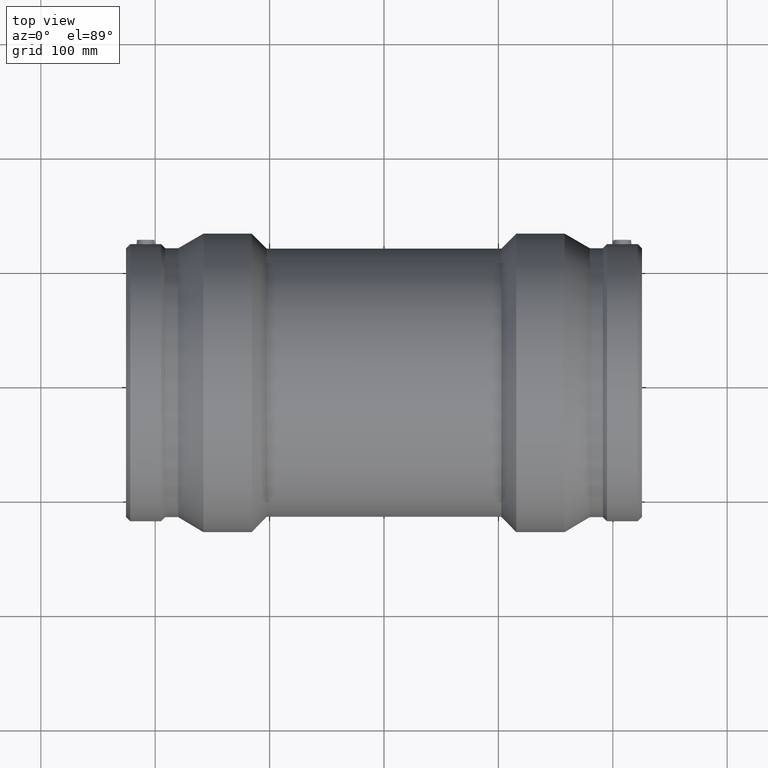
[diagram: clean part render]
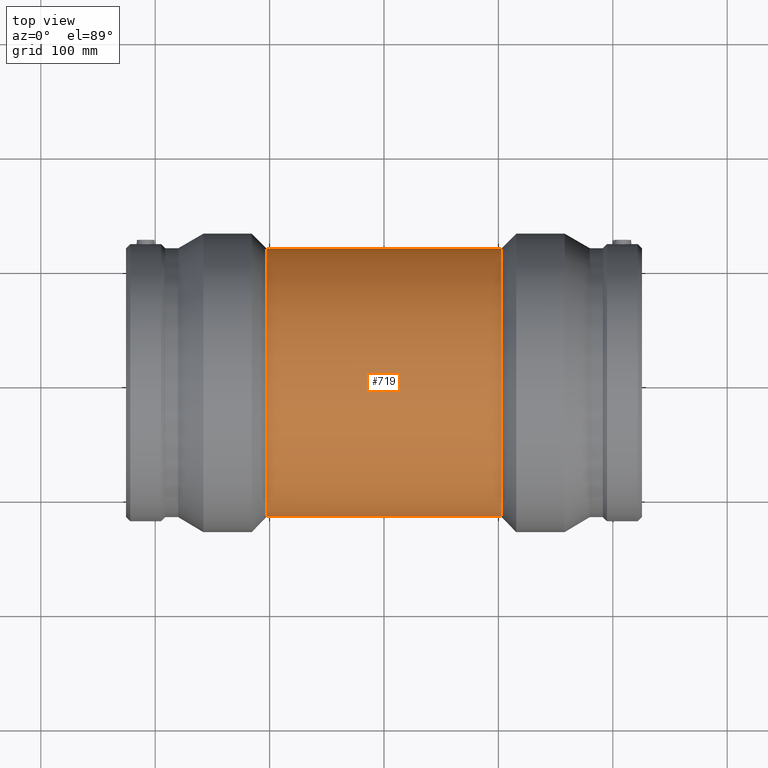
[diagram: same view with one face highlighted and labeled with its STEP entity id]
A machine part, top view. The second image highlights one B-rep face of the part: STEP entity #719.
In plain terms, the highlighted cylindrical surface (bore or boss wall) has radius 117.45 mm, axis along (1, 0, 0).
Its self-contained STEP definition (entity closure, byte-faithful):
#79=FACE_BOUND('',#331,.T.);
#80=FACE_BOUND('',#332,.T.);
#147=CIRCLE('',#807,117.45);
#148=CIRCLE('',#808,117.45);
#199=CYLINDRICAL_SURFACE('',#806,117.45);
#235=FACE_OUTER_BOUND('',#330,.T.);
#330=EDGE_LOOP('',(#616));
#331=EDGE_LOOP('',(#617));
#332=EDGE_LOOP('',(#618));
#416=B_SPLINE_CURVE_WITH_KNOTS('',3,(#1449,#1450,#1451,#1452,#1453,#1454,
#1455,#1456,#1457,#1458,#1459,#1460,#1461,#1462,#1463,#1464,#1465,#1466,
#1467,#1468,#1469,#1470,#1471,#1472,#1473,#1474,#1475,#1476,#1477,#1478,
#1479,#1480,#1481,#1482,#1483,#1484,#1485,#1486,#1487,#1488,#1489,#1490,
#1491,#1492,#1493,#1494,#1495,#1496,#1497,#1498,#1499,#1500,#1501,#1502,
#1503,#1504,#1505,#1506,#1507,#1508,#1509,#1510,#1511,#1512,#1513,#1514),
 .UNSPECIFIED.,.T.,.F.,(4,2,2,2,2,2,2,2,2,2,2,2,2,2,2,2,2,2,2,2,2,2,2,2,
2,2,2,2,2,2,2,2,4),(0.,0.955757306600861,1.91151461320172,2.86727191980258,
3.82302922640344,4.77751767205219,5.73200611770094,6.68649456334968,7.64098300899843,
8.59547145464717,9.54995990029592,10.5044483459447,11.4589367915934,12.4146940981943,
13.3704514047951,14.326208711396,15.2819660179969,16.2377233245977,17.1934806311986,
18.1492379377994,19.1049952444003,20.059483690049,21.0139721356978,21.9684605813465,
22.9229490269953,23.877437472644,24.8319259182928,25.7864143639415,26.7409028095903,
27.6966601161911,28.652417422792,29.6081747293929,30.5639320359937),
 .UNSPECIFIED.);
#439=VERTEX_POINT('',#1448);
#448=VERTEX_POINT('',#1541);
#449=VERTEX_POINT('',#1543);
#509=EDGE_CURVE('',#439,#439,#416,.T.);
#518=EDGE_CURVE('',#448,#448,#147,.T.);
#519=EDGE_CURVE('',#449,#449,#148,.T.);
#616=ORIENTED_EDGE('',*,*,#518,.F.);
#617=ORIENTED_EDGE('',*,*,#519,.T.);
#618=ORIENTED_EDGE('',*,*,#509,.T.);
#719=ADVANCED_FACE('',(#235,#79,#80),#199,.T.);
#806=AXIS2_PLACEMENT_3D('',#1540,#977,#978);
#807=AXIS2_PLACEMENT_3D('',#1542,#979,#980);
#808=AXIS2_PLACEMENT_3D('',#1544,#981,#982);
#977=DIRECTION('center_axis',(1.,0.,0.));
#978=DIRECTION('ref_axis',(0.,1.,0.));
#979=DIRECTION('center_axis',(1.,0.,0.));
#980=DIRECTION('ref_axis',(0.,0.,-1.));
#981=DIRECTION('center_axis',(1.,0.,0.));
#982=DIRECTION('ref_axis',(0.,0.,-1.));
#1448=CARTESIAN_POINT('',(-1.33226762955019E-14,50.,-106.275596916696));
#1449=CARTESIAN_POINT('Ctrl Pts',(-1.33226762955019E-14,50.,-106.275596916696));
#1450=CARTESIAN_POINT('Ctrl Pts',(-3.18585768866955,50.,-106.275596916696));
#1451=CARTESIAN_POINT('Ctrl Pts',(-6.46501855704906,49.6906485050072,-106.422942475509));
#1452=CARTESIAN_POINT('Ctrl Pts',(-12.9592024121474,48.4047114247052,-107.013957708738));
#1453=CARTESIAN_POINT('Ctrl Pts',(-16.1743842889214,47.4285714881785,-107.4568507675));
#1454=CARTESIAN_POINT('Ctrl Pts',(-22.3188112596429,44.8659239948301,-108.551797447216));
#1455=CARTESIAN_POINT('Ctrl Pts',(-25.2537187096634,43.2773844010811,-109.203420269387));
#1456=CARTESIAN_POINT('Ctrl Pts',(-30.6726277301174,39.6216130228783,-110.582307716082));
#1457=CARTESIAN_POINT('Ctrl Pts',(-33.1567026736536,37.5539754450012,-111.308207763544));
#1458=CARTESIAN_POINT('Ctrl Pts',(-37.5510565409673,33.1596215776875,-112.695357398892));
#1459=CARTESIAN_POINT('Ctrl Pts',(-39.6183114336136,30.6769591561118,-113.407279654496));
#1460=CARTESIAN_POINT('Ctrl Pts',(-43.2753079218314,25.2573583078083,-114.736013321313));
#1461=CARTESIAN_POINT('Ctrl Pts',(-44.8653336026487,22.320338871182,-115.35171219105));
#1462=CARTESIAN_POINT('Ctrl Pts',(-47.429684357354,16.1716039190026,-116.373082210061));
#1463=CARTESIAN_POINT('Ctrl Pts',(-48.4060493937183,12.9542835304763,-116.778883414181));
#1464=CARTESIAN_POINT('Ctrl Pts',(-49.6914066144252,6.45934891505962,-117.317508858894));
#1465=CARTESIAN_POINT('Ctrl Pts',(-50.,3.18162815216249,-117.45));
#1466=CARTESIAN_POINT('Ctrl Pts',(-50.,-3.18162815216249,-117.45));
#1467=CARTESIAN_POINT('Ctrl Pts',(-49.6914066144252,-6.45934891505962,-117.317508858894));
#1468=CARTESIAN_POINT('Ctrl Pts',(-48.4060493937183,-12.9542835304763,-116.778883414181));
#1469=CARTESIAN_POINT('Ctrl Pts',(-47.429684357354,-16.1716039190026,-116.373082210061));
#1470=CARTESIAN_POINT('Ctrl Pts',(-44.8653336026487,-22.320338871182,-115.35171219105));
#1471=CARTESIAN_POINT('Ctrl Pts',(-43.2753079218314,-25.2573583078083,-114.736013321313));
#1472=CARTESIAN_POINT('Ctrl Pts',(-39.6183114336135,-30.6769591561118,-113.407279654496));
#1473=CARTESIAN_POINT('Ctrl Pts',(-37.5510565409673,-33.1596215776875,-112.695357398892));
#1474=CARTESIAN_POINT('Ctrl Pts',(-33.1567026736536,-37.5539754450012,-111.308207763544));
#1475=CARTESIAN_POINT('Ctrl Pts',(-30.6726277301174,-39.6216130228783,-110.582307716082));
#1476=CARTESIAN_POINT('Ctrl Pts',(-25.2537187096634,-43.2773844010811,-109.203420269387));
#1477=CARTESIAN_POINT('Ctrl Pts',(-22.3188112596429,-44.8659239948301,-108.551797447216));
#1478=CARTESIAN_POINT('Ctrl Pts',(-16.1743842889214,-47.4285714881785,-107.4568507675));
#1479=CARTESIAN_POINT('Ctrl Pts',(-12.9592024121475,-48.4047114247052,-107.013957708738));
#1480=CARTESIAN_POINT('Ctrl Pts',(-6.46501855704905,-49.6906485050072,-106.422942475509));
#1481=CARTESIAN_POINT('Ctrl Pts',(-3.18585768866955,-50.,-106.275596916696));
#1482=CARTESIAN_POINT('Ctrl Pts',(3.18585768866952,-50.,-106.275596916696));
#1483=CARTESIAN_POINT('Ctrl Pts',(6.46501855704903,-49.6906485050072,-106.422942475509));
#1484=CARTESIAN_POINT('Ctrl Pts',(12.9592024121474,-48.4047114247052,-107.013957708738));
#1485=CARTESIAN_POINT('Ctrl Pts',(16.1743842889214,-47.4285714881785,-107.4568507675));
#1486=CARTESIAN_POINT('Ctrl Pts',(22.3188112596429,-44.8659239948301,-108.551797447216));
#1487=CARTESIAN_POINT('Ctrl Pts',(25.2537187096634,-43.2773844010811,-109.203420269387));
#1488=CARTESIAN_POINT('Ctrl Pts',(30.6726277301174,-39.6216130228783,-110.582307716082));
#1489=CARTESIAN_POINT('Ctrl Pts',(33.1567026736535,-37.5539754450012,-111.308207763544));
#1490=CARTESIAN_POINT('Ctrl Pts',(37.5510565409673,-33.1596215776875,-112.695357398892));
#1491=CARTESIAN_POINT('Ctrl Pts',(39.6183114336135,-30.6769591561118,-113.407279654496));
#1492=CARTESIAN_POINT('Ctrl Pts',(43.2753079218314,-25.2573583078083,-114.736013321313));
#1493=CARTESIAN_POINT('Ctrl Pts',(44.8653336026486,-22.320338871182,-115.35171219105));
#1494=CARTESIAN_POINT('Ctrl Pts',(47.4296843573539,-16.1716039190026,-116.373082210061));
#1495=CARTESIAN_POINT('Ctrl Pts',(48.4060493937182,-12.9542835304763,-116.778883414181));
#1496=CARTESIAN_POINT('Ctrl Pts',(49.6914066144251,-6.45934891505963,-117.317508858894));
#1497=CARTESIAN_POINT('Ctrl Pts',(50.,-3.18162815216249,-117.45));
#1498=CARTESIAN_POINT('Ctrl Pts',(50.,3.18162815216248,-117.45));
#1499=CARTESIAN_POINT('Ctrl Pts',(49.6914066144251,6.45934891505962,-117.317508858894));
#1500=CARTESIAN_POINT('Ctrl Pts',(48.4060493937182,12.9542835304763,-116.778883414181));
#1501=CARTESIAN_POINT('Ctrl Pts',(47.4296843573539,16.1716039190026,-116.373082210061));
#1502=CARTESIAN_POINT('Ctrl Pts',(44.8653336026486,22.320338871182,-115.35171219105));
#1503=CARTESIAN_POINT('Ctrl Pts',(43.2753079218314,25.2573583078083,-114.736013321313));
#1504=CARTESIAN_POINT('Ctrl Pts',(39.6183114336135,30.6769591561118,-113.407279654496));
#1505=CARTESIAN_POINT('Ctrl Pts',(37.5510565409673,33.1596215776875,-112.695357398892));
#1506=CARTESIAN_POINT('Ctrl Pts',(33.1567026736535,37.5539754450012,-111.308207763544));
#1507=CARTESIAN_POINT('Ctrl Pts',(30.6726277301174,39.6216130228783,-110.582307716082));
#1508=CARTESIAN_POINT('Ctrl Pts',(25.2537187096633,43.2773844010811,-109.203420269387));
#1509=CARTESIAN_POINT('Ctrl Pts',(22.3188112596429,44.8659239948301,-108.551797447216));
#1510=CARTESIAN_POINT('Ctrl Pts',(16.1743842889214,47.4285714881785,-107.4568507675));
#1511=CARTESIAN_POINT('Ctrl Pts',(12.9592024121474,48.4047114247052,-107.013957708738));
#1512=CARTESIAN_POINT('Ctrl Pts',(6.46501855704904,49.6906485050072,-106.422942475509));
#1513=CARTESIAN_POINT('Ctrl Pts',(3.18585768866953,50.,-106.275596916696));
#1514=CARTESIAN_POINT('Ctrl Pts',(-1.16573417585641E-14,50.,-106.275596916696));
#1540=CARTESIAN_POINT('Origin',(0.,0.,0.));
#1541=CARTESIAN_POINT('',(102.6025,117.45,0.));
#1542=CARTESIAN_POINT('Origin',(102.6025,0.,0.));
#1543=CARTESIAN_POINT('',(-102.6025,117.45,0.));
#1544=CARTESIAN_POINT('Origin',(-102.6025,0.,0.));